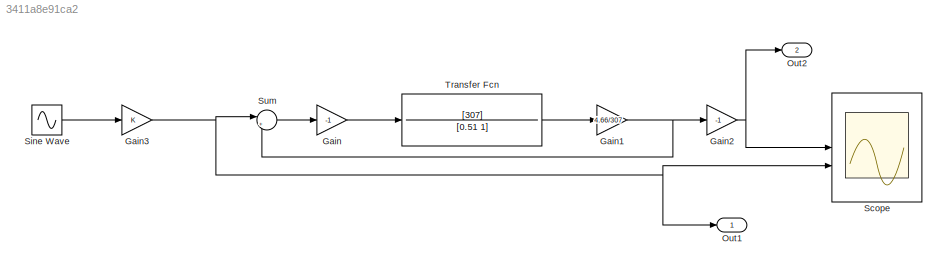
MODEL slx_3411a8e91ca2
KIND model
CONFIG AbsTol = auto
CONFIG EnableMultiTasking = off
CONFIG FixedStep = auto
CONFIG MaxStep = 1e-5
CONFIG MinStep = 1e-6
CONFIG RelTol = 1e-3
CONFIG SampleTimeConstraint = Unconstrained
CONFIG SolverName = VariableStepAuto
CONFIG StartTime = 0.0
CONFIG StopTime = 10.0
BLOCK [Gain] Gain
  Gain = -1
BLOCK [Gain] Gain1
  Gain = 4.66/307
BLOCK [Gain] Gain2
  Gain = -1
BLOCK [Gain] Gain3
BLOCK [Outport] Out1
  SignalName = input
BLOCK [Outport] Out2
  Port = 2
  SignalName = output
BLOCK [Scope] Scope
  Floating = off
  NumInputPorts = 2
  ScopeSpecificationString = Simulink.scopes.TimeScopeBlockCfg('CurrentConfiguration', extmgr.ConfigurationSet(extmgr.Configuration('Core','General UI',true),extmgr.Configuration('Core','Source UI',true),extmgr.Configuration('Sources','WiredSimulink',true),extmgr.Configuration('Visuals','Time Domain',true,'SerializedDisplays',{struct('MinYLimReal','-1.25','MaxYLimReal','1.25','YLabelReal','','MinYLimMag','0.00000','MaxYLimMag...<+1363ch>
BLOCK [Sin] Sine Wave
  SampleTime = 0
BLOCK [Sum] Sum
  Inputs = |++
BLOCK [TransferFcn] Transfer Fcn
  Denominator = [0.51 1]
  Numerator = [307]
NET Gain1:1 -> Gain2:1, Sum:2
NET Gain2:1 -> Out2:1, Scope:1
NET Gain3:1 -> Out1:1, Scope:2, Sum:1
LINE Gain:1 -> Transfer Fcn:1
LINE Sine Wave:1 -> Gain3:1
LINE Sum:1 -> Gain:1
LINE Transfer Fcn:1 -> Gain1:1
note: NET lines group one-source signal fan-out (src -> all destinations, sorted); 1:1 wires keep LINE
